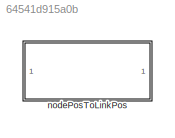
MODEL slx_64541d915a0b
KIND library
CONFIG AbsTol = auto
CONFIG EnableMultiTasking = off
CONFIG FixedStep = auto
CONFIG MaxStep = auto
CONFIG MinStep = auto
CONFIG RelTol = 1e-3
CONFIG SampleTimeConstraint = Unconstrained
CONFIG SolverName = VariableStepAuto
CONFIG StartTime = 0.0
CONFIG StopTime = 10.0
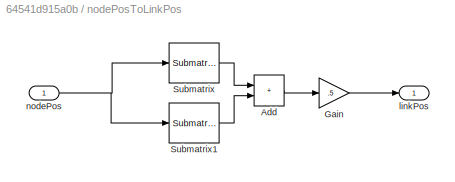
BLOCK [SubSystem] nodePosToLinkPos
  Ports = [1, 1]
  RequestExecContextInheritance = off
BLOCK [Sum] nodePosToLinkPos/Add
  IconShape = rectangular
  Ports = [2, 1]
BLOCK [Gain] nodePosToLinkPos/Gain
  Gain = .5
BLOCK [Reference] nodePosToLinkPos/Submatrix  REF=matrix_library/Submatrix
  Ports = [1, 1]
  SourceBlock = matrix_library/Submatrix
  SourceProductBaseCode = SL
  SourceType = Submatrix
BLOCK [Reference] nodePosToLinkPos/Submatrix1  REF=matrix_library/Submatrix
  Ports = [1, 1]
  SourceBlock = matrix_library/Submatrix
  SourceProductBaseCode = SL
  SourceType = Submatrix
BLOCK [Outport] nodePosToLinkPos/linkPos 
  VectorParamsAs1DForOutWhenUnconnected = off
BLOCK [Inport] nodePosToLinkPos/nodePos 
LINE nodePosToLinkPos/Add:1 -> nodePosToLinkPos/Gain:1
LINE nodePosToLinkPos/Gain:1 -> nodePosToLinkPos/linkPos :1
LINE nodePosToLinkPos/Submatrix1:1 -> nodePosToLinkPos/Add:2
LINE nodePosToLinkPos/Submatrix:1 -> nodePosToLinkPos/Add:1
NET nodePosToLinkPos/nodePos :1 -> nodePosToLinkPos/Submatrix1:1, nodePosToLinkPos/Submatrix:1
note: NET lines group one-source signal fan-out (src -> all destinations, sorted); 1:1 wires keep LINE
